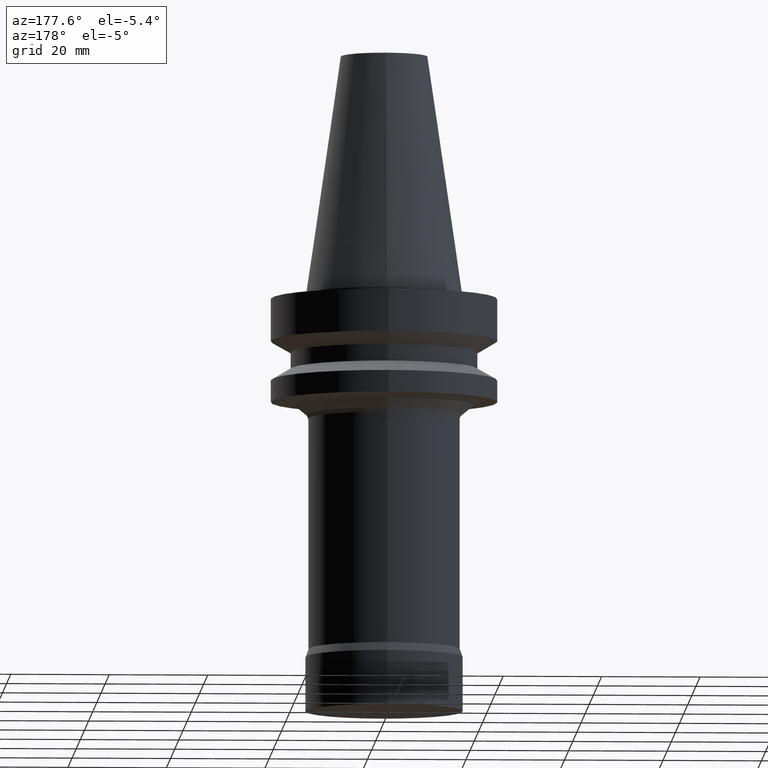
[diagram: clean part render]
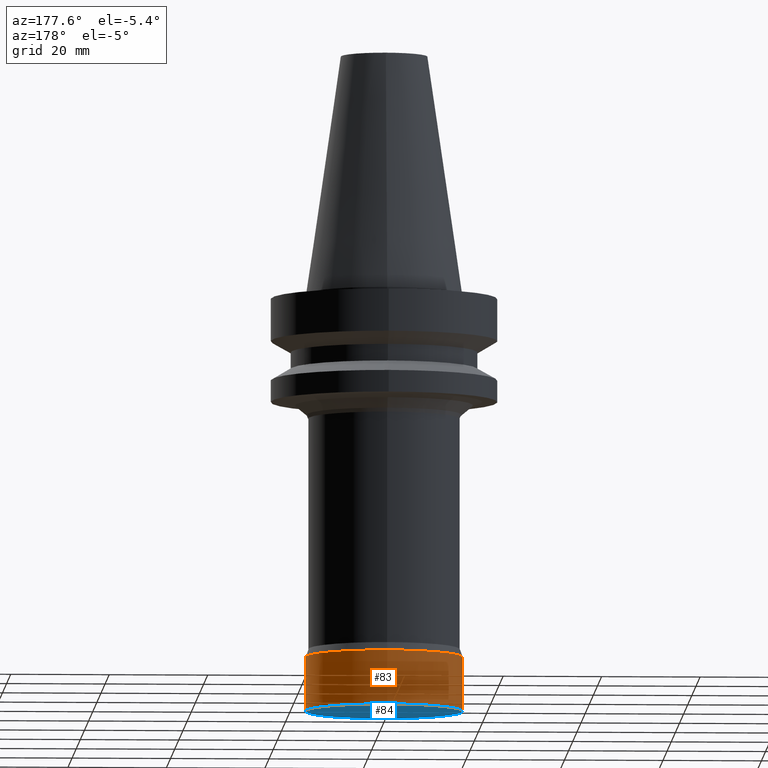
[diagram: same view with the hole feature highlighted: cylindrical wall and planar end face, labeled with their STEP entity ids]
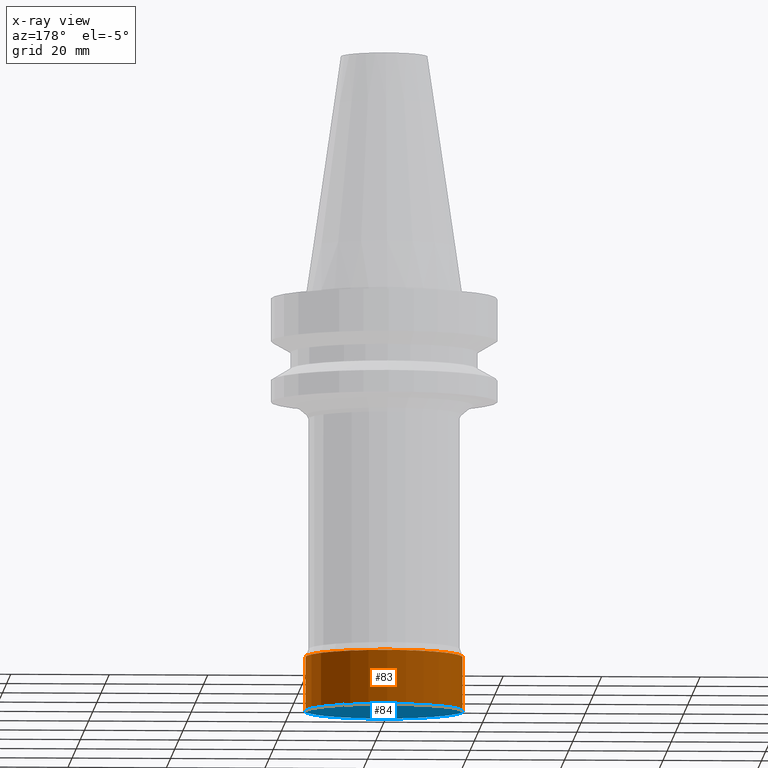
[diagram: x-ray of the same camera — body ghosted, the hole faces saturated]
A machine part, auxiliary view. The highlighted faces form one hole feature of diameter 32 mm: the cylindrical wall (entity #83, orange) and its adjacent planar end face (entity #84, blue) — they share a circular edge in the B-rep.
The next image is the same camera in x-ray (body ghosted, the hole faces saturated) — the bore reads through the body.
Wall:
#83=ADVANCED_FACE('',(#117,#118),#119,.T.);
#117=FACE_BOUND('',#166,.T.);
#118=FACE_BOUND('',#167,.T.);
#119=CYLINDRICAL_SURFACE('',#168,16.0);
#166=EDGE_LOOP('',(#231));
#167=EDGE_LOOP('',(#232));
#168=AXIS2_PLACEMENT_3D('',#233,#234,#235);
#231=ORIENTED_EDGE('',*,*,#283,.F.);
#232=ORIENTED_EDGE('',*,*,#282,.T.);
#233=CARTESIAN_POINT('',(4.86797102661073E-015,9.73594205322146E-015,-79.5));
#234=DIRECTION('',(-6.12323399573677E-017,-1.22464679914735E-016,1.0));
#235=DIRECTION('',(-1.23259516440783E-032,1.0,1.22464679914735E-016));
#282=EDGE_CURVE('',#306,#306,#307,.T.);
#283=EDGE_CURVE('',#308,#308,#309,.T.);
#306=VERTEX_POINT('',#338);
#307=CIRCLE('',#339,16.0);
#308=VERTEX_POINT('',#340);
#309=CIRCLE('',#341,16.0);
#338=CARTESIAN_POINT('',(4.53119315684521E-015,16.0,-74.0));
#339=AXIS2_PLACEMENT_3D('',#378,#379,#380);
#340=CARTESIAN_POINT('',(5.20474889637625E-015,16.0,-85.0));
#341=AXIS2_PLACEMENT_3D('',#381,#382,#383);
#378=CARTESIAN_POINT('',(4.53119315684521E-015,9.06238631369041E-015,-74.0));
#379=DIRECTION('',(6.12323399573677E-017,1.22464679914735E-016,-1.0));
#380=DIRECTION('',(-1.23259516440783E-032,1.0,1.22464679914735E-016));
#381=CARTESIAN_POINT('',(5.20474889637625E-015,1.04094977927525E-014,-85.0));
#382=DIRECTION('',(6.12323399573677E-017,1.22464679914735E-016,-1.0));
#383=DIRECTION('',(-1.23259516440783E-032,1.0,1.22464679914735E-016));
End face:
#84=ADVANCED_FACE('',(#120),#121,.T.);
#120=FACE_OUTER_BOUND('',#169,.T.);
#121=PLANE('',#170);
#169=EDGE_LOOP('',(#236));
#170=AXIS2_PLACEMENT_3D('',#237,#238,#239);
#236=ORIENTED_EDGE('',*,*,#283,.T.);
#237=CARTESIAN_POINT('',(5.20474889637625E-015,8.00000000000001,-85.0));
#238=DIRECTION('',(6.12323399573677E-017,1.22464679914735E-016,-1.0));
#239=DIRECTION('',(-1.23259516440783E-032,1.0,1.22464679914735E-016));
#283=EDGE_CURVE('',#308,#308,#309,.T.);
#308=VERTEX_POINT('',#340);
#309=CIRCLE('',#341,16.0);
#340=CARTESIAN_POINT('',(5.20474889637625E-015,16.0,-85.0));
#341=AXIS2_PLACEMENT_3D('',#381,#382,#383);
#381=CARTESIAN_POINT('',(5.20474889637625E-015,1.04094977927525E-014,-85.0));
#382=DIRECTION('',(6.12323399573677E-017,1.22464679914735E-016,-1.0));
#383=DIRECTION('',(-1.23259516440783E-032,1.0,1.22464679914735E-016));